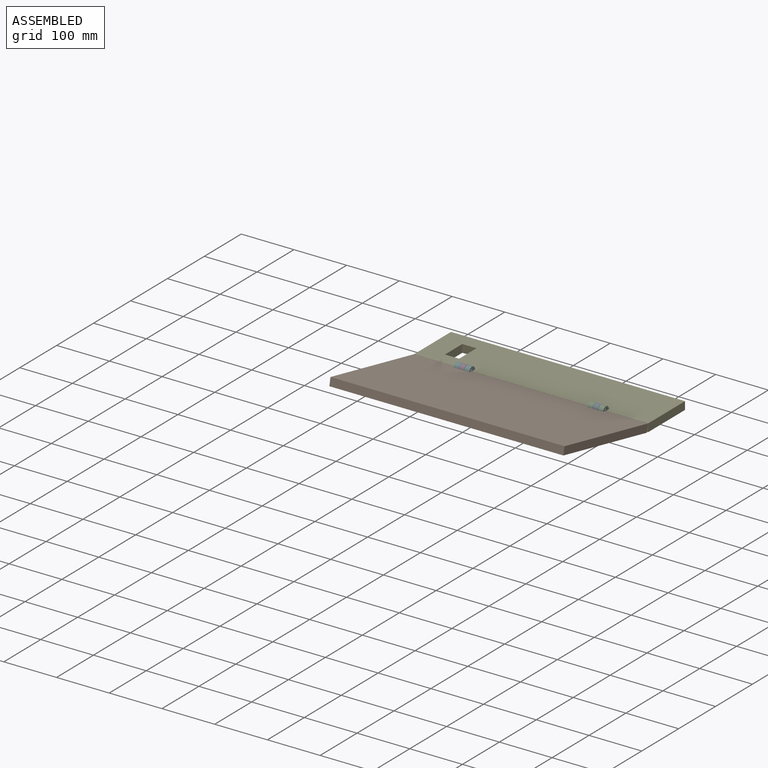
[diagram: assembled view]
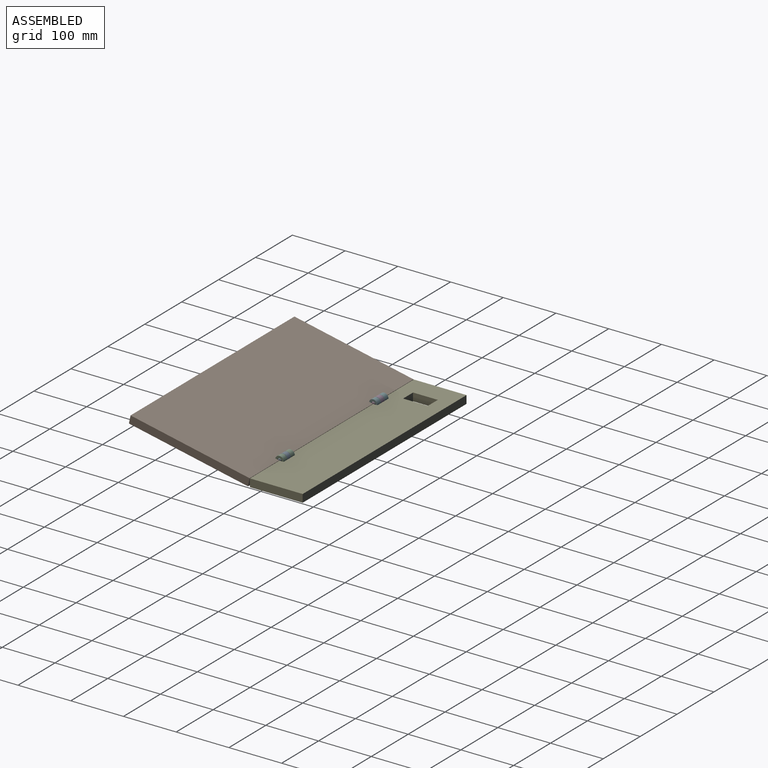
[diagram: assembled view, second angle]
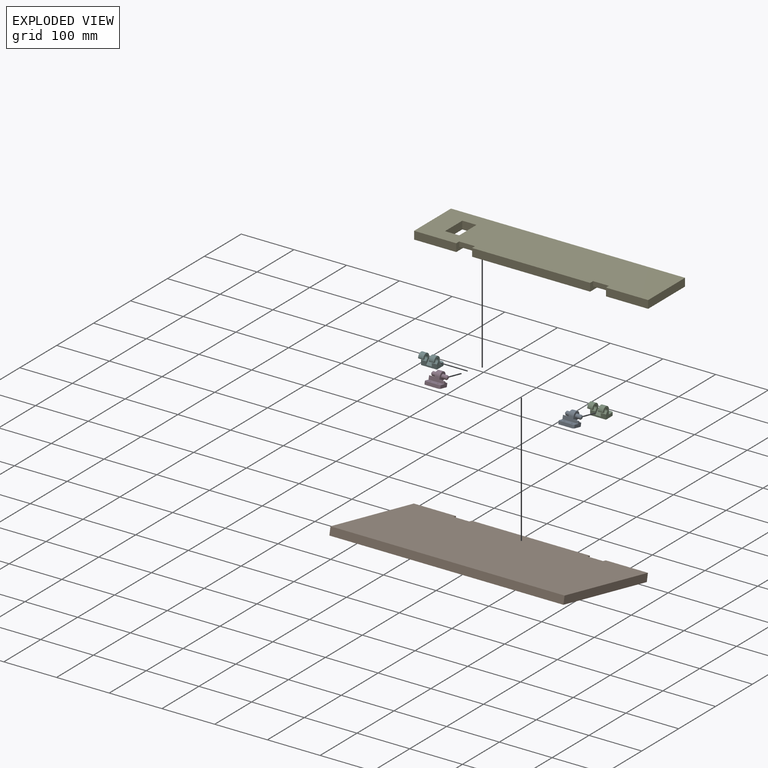
[diagram: exploded view]
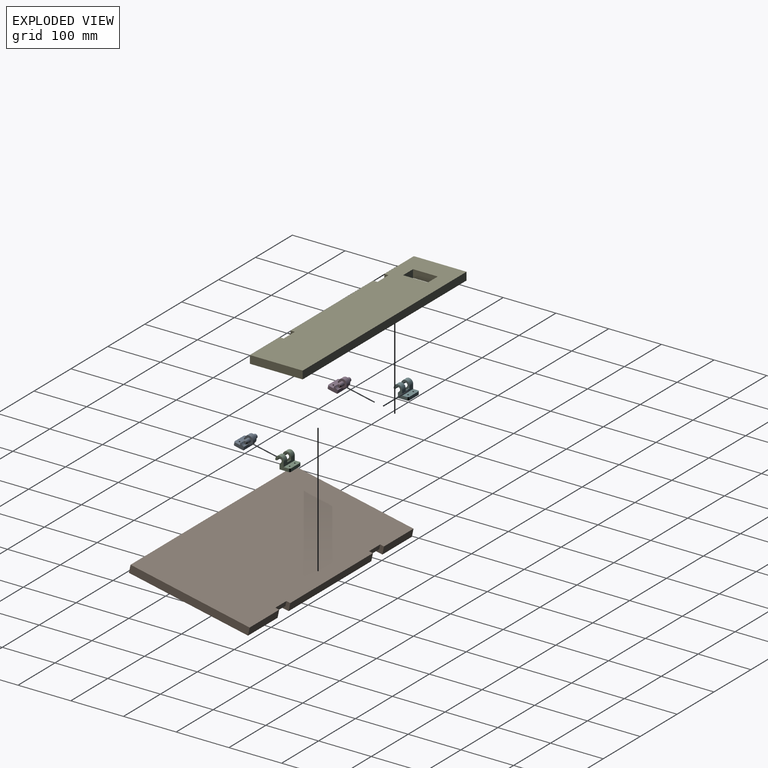
[diagram: exploded view, second angle]
ASSEMBLY  parts=6 mates=13
PART A: 25 faces, bbox 30x23x28 mm
  f0: cylinder r=3.9mm len=8.7mm, axis (1,0,0), area 213.2mm2, adj f12,f18
  f1: plane 17x13.2mm, normal (-1,0,0), area 121.4mm2, adj f2,f3,f5,f11,f15,f23
  f2: plane 30x7mm, normal (0,0,1), area 205.9mm2, adj f1,f5,f7,f9,f10,f11,f12,f13
  f3: plane 30x9mm, normal (0,0,-1), area 204.6mm2, adj f1,f7,f10,f11,f12,f13,f15,f24
  f4: plane 4.8x4.8mm, normal (1,0,0), area 18.1mm2, adj f19
  f5: plane 30x20mm, normal (0,1,0), area 539.6mm2, adj f1,f2,f7,f14,f20,f21,f22,f23
  f6: plane 4.8x4.8mm, normal (-1,0,0), area 18.1mm2, adj f18
  f7: plane 17x10.68mm, normal (1,0,0), area 120.2mm2, adj f2,f3,f5,f9,f15,f22,f24
  f8: cylinder r=3.9mm len=8.7mm, axis (1,0,0), area 213.2mm2, adj f10,f19
  f9: cylinder r=8.2mm len=10.2mm, axis (1,0,0), area 85mm2, adj f2,f7,f10,f24
  f10: plane 16.2x16mm, normal (1,0,0), area 156.8mm2, adj f2,f3,f8,f9,f13,f24
  f11: cylinder r=8.2mm len=10.2mm, axis (-1,0,0), area 112.9mm2, adj f1,f2,f3,f12
  f12: plane 16.2x16mm, normal (-1,0,0), area 155.6mm2, adj f0,f2,f3,f11,f13
  f13: cylinder r=8mm len=16mm, axis (1,0,0), area 361.9mm2, adj f2,f3,f10,f12
  f14: plane 24x6mm, normal (0,0,-1), area 144mm2, adj f5,f15,f22,f23
  f15: plane 30x12mm, normal (0,-1,0), area 342mm2, adj f1,f3,f7,f14,f16,f17,f22,f23
  f16: cylinder r=1.5mm len=4.5mm, axis (0,1,0), area 42.4mm2, adj f15,f21
  f17: cylinder r=1.5mm len=4.5mm, axis (0,1,0), area 42.4mm2, adj f15,f20
  f18: cone r=3.9mm half-angle=45deg, axis (1,0,0), area 42mm2, adj f0,f6
  f19: cone r=2.4mm half-angle=45deg, axis (-1,0,0), area 42mm2, adj f4,f8
  f20: cone r=1.5mm half-angle=45deg, axis (0,1,0), area 30mm2, adj f5,f17
  f21: cone r=1.5mm half-angle=45deg, axis (0,1,0), area 30mm2, adj f5,f16
  f22: cylinder r=3mm len=6mm, axis (0,1,0), area 28.3mm2, adj f5,f7,f14,f15
  f23: cylinder r=3mm len=6mm, axis (0,-1,0), area 28.3mm2, adj f1,f5,f14,f15
  f24: plane 10.2x1.03mm, normal (0,-0.96,-0.27), area 10.9mm2, adj f3,f7,f9,f10
PART B: 22 faces, bbox 230.8x444x15 mm
  f0: plane 230.8x15mm, normal (0,-1,0), area 3462mm2, adj f2,f3,f19,f21
  f1: plane 230.8x15mm, normal (0,1,0), area 3462mm2, adj f2,f3,f20,f21
  f2: plane 444x230.8mm, normal (0,0,-1), area 101318.9mm2, adj f0,f1,f4,f5,f6,f7,f10,f12
  f3: plane 444x230.8mm, normal (0,0,1), area 102031.2mm2, adj f0,f1,f4,f5,f6,f7,f8,f9
  f4: plane 16.4x15mm, normal (0,1,0), area 165mm2, adj f2,f3,f8,f13,f17,f18
  f5: plane 16.4x15mm, normal (0,-1,0), area 165mm2, adj f2,f3,f8,f13,f16,f20
  f6: plane 16.4x15mm, normal (0,1,0), area 165mm2, adj f2,f3,f9,f11,f14,f19
  f7: plane 16.4x15mm, normal (0,-1,0), area 165mm2, adj f2,f3,f9,f11,f15,f18
  f8: plane 30x9mm, normal (1,0,0), area 270mm2, adj f3,f4,f5,f13
  f9: plane 30x9mm, normal (1,0,0), area 270mm2, adj f3,f6,f7,f11
  f10: plane 24x6mm, normal (1,0,0), area 144mm2, adj f2,f11,f14,f15
  f11: plane 30x12mm, normal (0,0,-1), area 356.1mm2, adj f6,f7,f9,f10,f14,f15
  f12: plane 24x6mm, normal (1,0,0), area 144mm2, adj f2,f13,f16,f17
  f13: plane 30x12mm, normal (0,0,-1), area 356.1mm2, adj f4,f5,f8,f12,f16,f17
  f14: cylinder r=3mm len=6mm, axis (0,0,-1), area 28.3mm2, adj f2,f6,f10,f11
  f15: cylinder r=3mm len=6mm, axis (0,0,1), area 28.3mm2, adj f2,f7,f10,f11
  f16: cylinder r=3mm len=6mm, axis (0,0,1), area 28.3mm2, adj f2,f5,f12,f13
  f17: cylinder r=3mm len=6mm, axis (0,0,-1), area 28.3mm2, adj f2,f4,f12,f13
  f18: plane 224x15mm, normal (1,0,0), area 3360mm2, adj f2,f3,f4,f7
  f19: plane 80x15mm, normal (1,0,0), area 1200mm2, adj f0,f2,f3,f6
  f20: plane 80x15mm, normal (1,0,0), area 1200mm2, adj f1,f2,f3,f5
  f21: plane 444x15mm, normal (-1,0,0), area 6660mm2, adj f0,f1,f2,f3
PART C: 30 faces, bbox 30x23x28 mm
  f0: plane 30x9mm, normal (0,0,-1), area 222.1mm2, adj f1,f3,f4,f5,f13,f18,f19,f29
  f1: cylinder r=8mm len=16mm, axis (1,0,0), area 248.7mm2, adj f0,f3,f19,f25
  f2: plane 30x8.83mm, normal (0,0,1), area 200.6mm2, adj f3,f5,f6,f9,f12,f18,f19,f20
  f3: plane 25x23mm, normal (-1,0,0), area 235.9mm2, adj f0,f1,f2,f6,f10,f11,f12,f13
  f4: cylinder r=8mm len=16mm, axis (1,0,0), area 248.7mm2, adj f0,f5,f18,f26
  f5: plane 25x23mm, normal (1,0,0), area 235.9mm2, adj f0,f2,f4,f6,f7,f8,f9,f13
  f6: plane 30x20mm, normal (0,1,0), area 539.6mm2, adj f2,f3,f5,f14,f21,f22,f23,f24
  f7: cylinder r=4.1mm len=9.8mm, axis (1,0,0), area 154.4mm2, adj f5,f9,f18,f28
  f8: plane 9.8x2.34mm, normal (0,1,0), area 23mm2, adj f5,f18,f26,f28
  f9: plane 9.8x3.66mm, normal (0,-0.66,0.75), area 48mm2, adj f2,f5,f7,f18
  f10: cylinder r=4.1mm len=9.8mm, axis (-1,0,0), area 154.4mm2, adj f3,f12,f19,f27
  f11: plane 9.8x2.34mm, normal (0,1,0), area 23mm2, adj f3,f19,f25,f27
  f12: plane 9.8x3.66mm, normal (0,-0.66,0.75), area 48mm2, adj f2,f3,f10,f19
  f13: plane 30x12mm, normal (0,-1,0), area 342mm2, adj f0,f3,f5,f14,f15,f16,f23,f24
  f14: plane 24x6mm, normal (0,0,-1), area 144mm2, adj f6,f13,f23,f24
  f15: cylinder r=1.5mm len=4.5mm, axis (0,1,0), area 42.4mm2, adj f13,f22
  f16: cylinder r=1.5mm len=4.5mm, axis (0,1,0), area 42.4mm2, adj f13,f21
  f17: cylinder r=8.2mm len=10.4mm, axis (1,0,0), area 14.6mm2, adj f18,f19,f20,f29
  f18: plane 20.36x16mm, normal (-1,0,0), area 125.2mm2, adj f0,f2,f4,f7,f8,f9,f17,f20
  f19: plane 20.36x16mm, normal (1,0,0), area 125.2mm2, adj f0,f1,f2,f10,f11,f12,f17,f20
  f20: plane 10.4x6.92mm, normal (0,-0.66,0.75), area 96.2mm2, adj f2,f17,f18,f19
  f21: cone r=1.5mm half-angle=45deg, axis (0,1,0), area 30mm2, adj f6,f16
  f22: cone r=1.5mm half-angle=45deg, axis (0,1,0), area 30mm2, adj f6,f15
  f23: cylinder r=3mm len=6mm, axis (0,-1,0), area 28.3mm2, adj f5,f6,f13,f14
  f24: cylinder r=3mm len=6mm, axis (0,1,0), area 28.3mm2, adj f3,f6,f13,f14
  f25: plane 9.8x0.78mm, normal (0,0.72,0.7), area 10.6mm2, adj f1,f3,f11,f19
  f26: plane 9.8x0.78mm, normal (0,0.72,0.7), area 10.6mm2, adj f4,f5,f8,f18
  f27: plane 9.8x0.82mm, normal (0,0.69,-0.72), area 11mm2, adj f3,f10,f11,f19
  f28: plane 9.8x0.82mm, normal (0,0.69,-0.72), area 11mm2, adj f5,f7,f8,f18
  f29: plane 10.4x1.03mm, normal (0,-0.96,-0.27), area 11.1mm2, adj f0,f17,f18,f19
PART D: same geometry as A
PART E: 30 faces, bbox 444x100x15 mm
  f0: plane 30x9mm, normal (0,-1,0), area 270mm2, adj f5,f14,f15,f25
  f1: plane 30x9mm, normal (0,-1,0), area 270mm2, adj f5,f16,f17,f23
  f2: plane 444x100mm, normal (0,0,-1), area 41938.7mm2, adj f3,f4,f6,f7,f8,f9,f14,f15
  f3: plane 80x15mm, normal (0,-1,0), area 1200mm2, adj f2,f5,f8,f16
  f4: plane 224x15mm, normal (0,-1,0), area 3360mm2, adj f2,f5,f15,f17
  f5: plane 444x100mm, normal (0,0,1), area 42651mm2, adj f0,f1,f3,f4,f6,f7,f8,f9
  f6: plane 100x15mm, normal (-1,0,0), area 1443.5mm2, adj f2,f5,f7,f9,f10,f12
  f7: plane 80x15mm, normal (0,-1,0), area 1200mm2, adj f2,f5,f6,f14
  f8: plane 100x15mm, normal (1,0,0), area 1500mm2, adj f2,f3,f5,f9
  f9: plane 444x15mm, normal (0,1,0), area 6660mm2, adj f2,f5,f6,f8
  f10: cylinder r=3mm len=20mm, axis (-1,0,0), area 377mm2, adj f6,f11
  f11: plane 6x6mm, normal (-1,0,0), area 28.3mm2, adj f10
  f12: cylinder r=3mm len=20mm, axis (-1,0,0), area 377mm2, adj f6,f13
  f13: plane 6x6mm, normal (-1,0,0), area 28.3mm2, adj f12
  f14: plane 17x15mm, normal (1,0,0), area 174mm2, adj f0,f2,f5,f7,f25,f29
  f15: plane 17x15mm, normal (-1,0,0), area 174mm2, adj f0,f2,f4,f5,f25,f28
  f16: plane 17x15mm, normal (-1,0,0), area 174mm2, adj f1,f2,f3,f5,f23,f27
  f17: plane 17x15mm, normal (1,0,0), area 174mm2, adj f1,f2,f4,f5,f23,f26
  f18: plane 27x15mm, normal (0,1,0), area 405mm2, adj f2,f5,f19,f21
  f19: plane 47x15mm, normal (-1,0,0), area 705mm2, adj f2,f5,f18,f20
  f20: plane 27x15mm, normal (0,-1,0), area 405mm2, adj f2,f5,f19,f21
  f21: plane 47x15mm, normal (1,0,0), area 705mm2, adj f2,f5,f18,f20
  f22: plane 24x6mm, normal (0,-1,0), area 144mm2, adj f2,f23,f26,f27
  f23: plane 30x12mm, normal (0,0,-1), area 356.1mm2, adj f1,f16,f17,f22,f26,f27
  f24: plane 24x6mm, normal (0,-1,0), area 144mm2, adj f2,f25,f28,f29
  f25: plane 30x12mm, normal (0,0,-1), area 356.1mm2, adj f0,f14,f15,f24,f28,f29
  f26: cylinder r=3mm len=6mm, axis (0,0,-1), area 28.3mm2, adj f2,f17,f22,f23
  f27: cylinder r=3mm len=6mm, axis (0,0,1), area 28.3mm2, adj f2,f16,f22,f23
  f28: cylinder r=3mm len=6mm, axis (0,0,1), area 28.3mm2, adj f2,f15,f24,f25
  f29: cylinder r=3mm len=6mm, axis (0,0,-1), area 28.3mm2, adj f2,f14,f24,f25
PART F: same geometry as C
PLACE A rot(axis=(-1,0,0),101.8deg) t=(715.92,798.3,181.23)mm
PLACE B rot(axis=(-0.1,0.1,0.99),90.6deg) t=(860.55,572.11,193.94)mm
PLACE C rot(axis=(0,-0.71,0.71),180deg) t=(815.18,810.26,136.73)mm
PLACE D rot(axis=(-1,0,0),101.8deg) t=(461.92,798.3,181.23)mm
PLACE E t=(416.55,802.26,146.09)mm fixed
PLACE F rot(axis=(0,-0.71,0.71),180deg) t=(561.18,810.26,136.73)mm
MATE planar F.f1 <-> E.f14  axis (-1,0,0) through (496.55,802.26,161.09)mm
MATE planar F.f6 <-> E.f2  axis (0,0,-1) through (511.55,811.78,146.09)mm
MATE planar B.f8 <-> D.f3  axis (0,0.98,-0.2) through (511.55,793.51,158.33)mm
MATE planar C.f1 <-> E.f16  axis (1,0,0) through (780.55,802.26,161.09)mm
MATE planar D.f0 <-> B.f5  axis (-1,0,0) through (496.55,802.26,161.09)mm
MATE planar A.f5 <-> B.f2  axis (0,-0.2,-0.98) through (765.55,789.88,148.36)mm
MATE planar B.f7 <-> A.f1  axis (1,0,0) through (750.55,793.59,153.74)mm
MATE planar F.f0 <-> E.f0  axis (0,1,0) through (511.55,810.26,156.12)mm
MATE planar A.f3 <-> B.f9  axis (0,-0.98,0.2) through (764.16,793.34,157.52)mm
MATE planar B.f2 <-> D.f5  axis (0,-0.2,-0.98) through (638.55,684.47,170.42)mm
MATE planar C.f0 <-> E.f1  axis (0,1,0) through (765.55,810.26,156.12)mm
MATE planar C.f6 <-> E.f2  axis (0,0,-1) through (765.55,811.78,146.09)mm
MATE revolute A.f0 <-> C.f1  axis (1,0,0) through (765.55,802.26,161.09)mm
